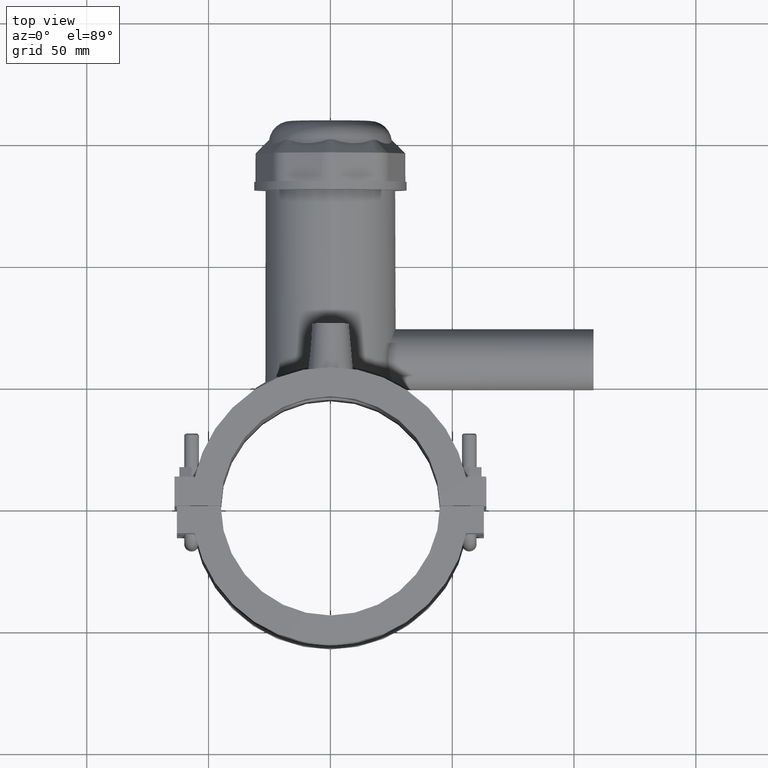
[diagram: clean part render]
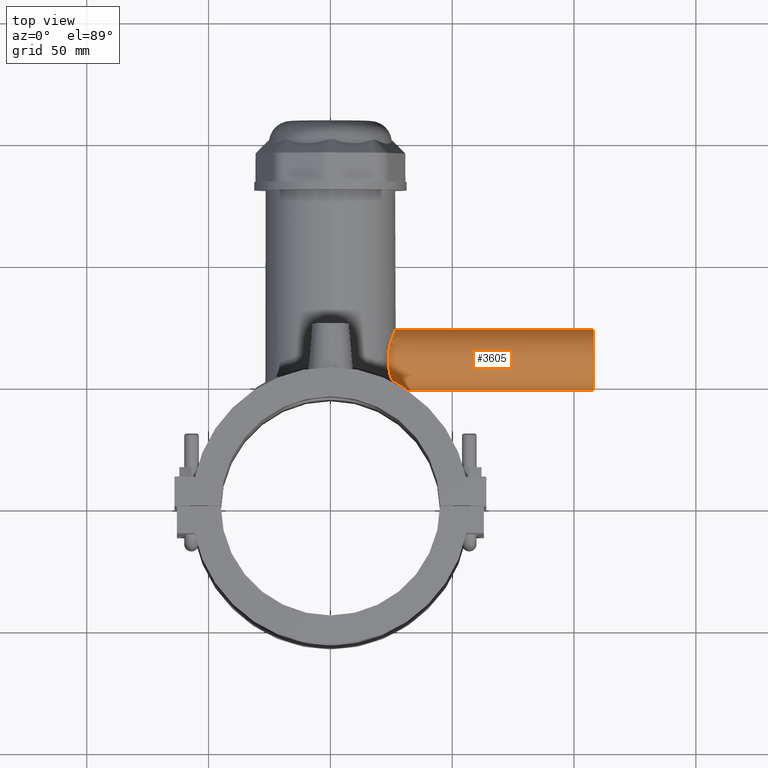
[diagram: same view with one face highlighted and labeled with its STEP entity id]
A machine part, top view. The second image highlights one B-rep face of the part: STEP entity #3605.
In plain terms, the highlighted cylindrical surface (bore or boss wall) has radius 12.5 mm, axis along (1, 0, 0).
Its self-contained STEP definition (entity closure, byte-faithful):
#783=CIRCLE('',#3833,12.5);
#908=FACE_BOUND('',#1187,.T.);
#960=FACE_OUTER_BOUND('',#1186,.T.);
#1186=EDGE_LOOP('',(#2462,#2463,#2464,#2465,#2466,#2467));
#1187=EDGE_LOOP('',(#2468));
#1460=B_SPLINE_CURVE_WITH_KNOTS('',3,(#5221,#5222,#5223,#5224,#5225,#5226,
#5227,#5228),.UNSPECIFIED.,.F.,.F.,(4,2,2,4),(2.8335730974998,3.075301165948,
3.51558167654324,3.62995735696861),.UNSPECIFIED.);
#1461=B_SPLINE_CURVE_WITH_KNOTS('',3,(#5230,#5231,#5232,#5233,#5234,#5235,
#5236,#5237,#5238,#5239,#5240,#5241,#5242,#5243,#5244,#5245,#5246,#5247,
#5248,#5249,#5250,#5251,#5252,#5253,#5254),.UNSPECIFIED.,.F.,.F.,(4,3,3,
3,3,3,3,3,4),(-0.281778788486912,-0.280168498724319,-0.278463444809663,
-0.275713408501899,-0.267417335682357,-0.166922444262522,-0.141924300416546,
-0.00974179914103905,0.),.UNSPECIFIED.);
#1462=B_SPLINE_CURVE_WITH_KNOTS('',3,(#5256,#5257,#5258,#5259,#5260,#5261,
#5262,#5263,#5264,#5265,#5266,#5267,#5268,#5269),.UNSPECIFIED.,.F.,.F.,
(4,2,2,2,2,2,4),(-0.542855285100639,-0.465706140484891,-0.355963267477839,
-0.309365403203592,-0.287933922326952,-0.283739571340908,-0.281778788486912),
 .UNSPECIFIED.);
#1463=B_SPLINE_CURVE_WITH_KNOTS('',3,(#5271,#5272,#5273,#5274,#5275,#5276,
#5277,#5278),.UNSPECIFIED.,.F.,.F.,(4,2,2,4),(1.20646585136034,1.32084153178572,
1.76112204238096,2.00285010728579),.UNSPECIFIED.);
#1464=B_SPLINE_CURVE_WITH_KNOTS('',3,(#5280,#5281,#5282,#5283,#5284,#5285,
#5286,#5287),.UNSPECIFIED.,.F.,.F.,(4,2,2,4),(0.,0.23978623097275,0.4795724619455,
0.945568926322873),.UNSPECIFIED.);
#1465=B_SPLINE_CURVE_WITH_KNOTS('',3,(#5288,#5289,#5290,#5291,#5292,#5293,
#5294,#5295,#5296,#5297,#5298,#5299,#5300,#5301,#5302,#5303,#5304,#5305,
#5306,#5307,#5308,#5309,#5310,#5311,#5312,#5313,#5314,#5315,#5316,#5317,
#5318,#5319),.UNSPECIFIED.,.F.,.F.,(4,2,2,2,2,2,2,2,2,2,2,2,2,2,2,4),(2.8871768996884,
3.35317336406577,3.59295959503852,3.83274582601127,4.07253205698402,4.31231828795677,
4.79189074990227,5.27050474445959,5.50981174173825,5.74911873901691,5.98842573629557,
6.22773273357423,6.70634672813155,7.18591919007705,7.4257054210498,7.66549165202255),
 .UNSPECIFIED.);
#1573=VERTEX_POINT('',#5219);
#1574=VERTEX_POINT('',#5220);
#1575=VERTEX_POINT('',#5229);
#1576=VERTEX_POINT('',#5255);
#1577=VERTEX_POINT('',#5270);
#1578=VERTEX_POINT('',#5279);
#1579=VERTEX_POINT('',#5320);
#1926=EDGE_CURVE('',#1573,#1574,#1460,.T.);
#1927=EDGE_CURVE('',#1575,#1573,#1461,.T.);
#1928=EDGE_CURVE('',#1576,#1575,#1462,.T.);
#1929=EDGE_CURVE('',#1577,#1576,#1463,.T.);
#1930=EDGE_CURVE('',#1578,#1577,#1464,.T.);
#1931=EDGE_CURVE('',#1574,#1578,#1465,.T.);
#1932=EDGE_CURVE('',#1579,#1579,#783,.T.);
#2462=ORIENTED_EDGE('',*,*,#1926,.F.);
#2463=ORIENTED_EDGE('',*,*,#1927,.F.);
#2464=ORIENTED_EDGE('',*,*,#1928,.F.);
#2465=ORIENTED_EDGE('',*,*,#1929,.F.);
#2466=ORIENTED_EDGE('',*,*,#1930,.F.);
#2467=ORIENTED_EDGE('',*,*,#1931,.F.);
#2468=ORIENTED_EDGE('',*,*,#1932,.F.);
#3549=CYLINDRICAL_SURFACE('',#3832,12.5);
#3605=ADVANCED_FACE('',(#960,#908),#3549,.T.);
#3832=AXIS2_PLACEMENT_3D('',#5218,#4164,#4165);
#3833=AXIS2_PLACEMENT_3D('',#5321,#4166,#4167);
#4164=DIRECTION('center_axis',(1.,0.,0.));
#4165=DIRECTION('ref_axis',(0.,1.,0.));
#4166=DIRECTION('center_axis',(1.,0.,0.));
#4167=DIRECTION('ref_axis',(0.,0.,-1.));
#5218=CARTESIAN_POINT('Origin',(54.,61.,0.));
#5219=CARTESIAN_POINT('',(30.8062860050717,49.1801358942178,4.06703977369833));
#5220=CARTESIAN_POINT('',(25.2413386704774,52.2550269938246,8.93171020139377));
#5221=CARTESIAN_POINT('Ctrl Pts',(30.8062860050715,49.1801358942179,4.06703977369822));
#5222=CARTESIAN_POINT('Ctrl Pts',(30.4127512037081,49.4266448845514,4.78345833086091));
#5223=CARTESIAN_POINT('Ctrl Pts',(29.9274635719254,49.7233122681519,5.42928357273707));
#5224=CARTESIAN_POINT('Ctrl Pts',(28.4931459425311,50.5668625062996,6.97826078340267));
#5225=CARTESIAN_POINT('Ctrl Pts',(27.402265987866,51.1726862768609,7.77721700931847));
#5226=CARTESIAN_POINT('Ctrl Pts',(25.8878946177037,51.9389297207693,8.6140437186314));
#5227=CARTESIAN_POINT('Ctrl Pts',(25.5680120279143,52.0972302549158,8.77721255297899));
#5228=CARTESIAN_POINT('Ctrl Pts',(25.2413386704507,52.2550269938081,8.93171020135421));
#5229=CARTESIAN_POINT('',(31.4634893794251,48.500020769456,-0.0227867498495124));
#5230=CARTESIAN_POINT('Ctrl Pts',(31.4634076069789,48.4997091859858,-0.0227948101558931));
#5231=CARTESIAN_POINT('Ctrl Pts',(31.4634201441957,48.4996911043606,-0.012629681378798));
#5232=CARTESIAN_POINT('Ctrl Pts',(31.4634249774448,48.4996855153327,-0.00246449456934948));
#5233=CARTESIAN_POINT('Ctrl Pts',(31.4634221082652,48.4996924167185,0.00770065422653663));
#5234=CARTESIAN_POINT('Ctrl Pts',(31.4634190702369,48.4996997242449,0.0184640131884477));
#5235=CARTESIAN_POINT('Ctrl Pts',(31.4634073965289,48.4997210356156,0.0292274026756375));
#5236=CARTESIAN_POINT('Ctrl Pts',(31.463387086864,48.4997563478453,0.0399906913555561));
#5237=CARTESIAN_POINT('Ctrl Pts',(31.4633543299435,48.4998133020055,0.0573505146469506));
#5238=CARTESIAN_POINT('Ctrl Pts',(31.4632991078644,48.4999066787408,0.0747103545875657));
#5239=CARTESIAN_POINT('Ctrl Pts',(31.4632214076892,48.5000364631734,0.0920696599181408));
#5240=CARTESIAN_POINT('Ctrl Pts',(31.4629870084888,48.5004279856781,0.144437718009762));
#5241=CARTESIAN_POINT('Ctrl Pts',(31.4625480909432,48.5011509303654,0.196807199941022));
#5242=CARTESIAN_POINT('Ctrl Pts',(31.4619034971594,48.5022047272064,0.249162936970466));
#5243=CARTESIAN_POINT('Ctrl Pts',(31.4540951782446,48.5149699477417,0.883376765902411));
#5244=CARTESIAN_POINT('Ctrl Pts',(31.4178815490393,48.5755478607373,1.47692853793576));
#5245=CARTESIAN_POINT('Ctrl Pts',(31.3526076465897,48.6637335440836,2.01473355948931));
#5246=CARTESIAN_POINT('Ctrl Pts',(31.3363707376308,48.6856697675702,2.14851277055108));
#5247=CARTESIAN_POINT('Ctrl Pts',(31.3182861693804,48.7092690641207,2.2788559476762));
#5248=CARTESIAN_POINT('Ctrl Pts',(31.2983096499739,48.7341352607962,2.40556181986223));
#5249=CARTESIAN_POINT('Ctrl Pts',(31.1926799552975,48.8656200659892,3.07554352790573));
#5250=CARTESIAN_POINT('Ctrl Pts',(31.0388321821759,49.0256832104116,3.60684764580445));
#5251=CARTESIAN_POINT('Ctrl Pts',(30.8499498941298,49.152623564453,3.98416841800225));
#5252=CARTESIAN_POINT('Ctrl Pts',(30.8360293426673,49.1619790193735,4.01197681275212));
#5253=CARTESIAN_POINT('Ctrl Pts',(30.8215915518938,49.171375530721,4.03959128339428));
#5254=CARTESIAN_POINT('Ctrl Pts',(30.8066297873845,49.1807479733073,4.06684648115406));
#5255=CARTESIAN_POINT('',(30.8062859995515,49.1801359023639,-4.06703981261122));
#5256=CARTESIAN_POINT('Ctrl Pts',(30.8062860050717,49.1801358942177,-4.06703977369781));
#5257=CARTESIAN_POINT('Ctrl Pts',(30.927670006016,49.1041013290109,-3.84606376212826));
#5258=CARTESIAN_POINT('Ctrl Pts',(31.0382907484818,49.0119352577934,-3.55913442271458));
#5259=CARTESIAN_POINT('Ctrl Pts',(31.2649960199497,48.7867203589022,-2.71129903387711));
#5260=CARTESIAN_POINT('Ctrl Pts',(31.3574914643694,48.6600540069396,-2.11004682262351));
#5261=CARTESIAN_POINT('Ctrl Pts',(31.4334041417753,48.5480020500026,-1.13299092411028));
#5262=CARTESIAN_POINT('Ctrl Pts',(31.4480509200006,48.5247209420449,-0.838992582660414));
#5263=CARTESIAN_POINT('Ctrl Pts',(31.4597928810253,48.5059946972116,-0.410034187960287));
#5264=CARTESIAN_POINT('Ctrl Pts',(31.4620869468401,48.5022857813546,-0.274680713899316));
#5265=CARTESIAN_POINT('Ctrl Pts',(31.4632041110004,48.5004817508045,-0.112893138722136));
#5266=CARTESIAN_POINT('Ctrl Pts',(31.4633347728734,48.5002706190462,-0.086410375507048));
#5267=CARTESIAN_POINT('Ctrl Pts',(31.4634500708005,48.5000842998945,-0.047547479229087));
#5268=CARTESIAN_POINT('Ctrl Pts',(31.4634754154102,48.5000433381422,-0.0351671073452124));
#5269=CARTESIAN_POINT('Ctrl Pts',(31.4634893794251,48.500020769456,-0.0227867498495124));
#5270=CARTESIAN_POINT('',(25.2413386704774,52.2550269938246,-8.93171020139377));
#5271=CARTESIAN_POINT('Ctrl Pts',(25.2413386704507,52.2550269938081,-8.93171020135421));
#5272=CARTESIAN_POINT('Ctrl Pts',(25.5680120279142,52.0972302549158,-8.77721255297899));
#5273=CARTESIAN_POINT('Ctrl Pts',(25.8878946177037,51.9389297207693,-8.61404371863141));
#5274=CARTESIAN_POINT('Ctrl Pts',(27.402265987866,51.1726862768609,-7.77721700931848));
#5275=CARTESIAN_POINT('Ctrl Pts',(28.4931459425311,50.5668625062996,-6.97826078340267));
#5276=CARTESIAN_POINT('Ctrl Pts',(29.9274635644734,49.7233122725346,-5.42928358078477));
#5277=CARTESIAN_POINT('Ctrl Pts',(30.4127511895546,49.4266448932242,-4.7834583498587));
#5278=CARTESIAN_POINT('Ctrl Pts',(30.8062859877629,49.1801359050599,-4.06703980520797));
#5279=CARTESIAN_POINT('',(23.6780621039814,61.,-12.5));
#5280=CARTESIAN_POINT('Ctrl Pts',(23.6780621039814,61.,-12.5));
#5281=CARTESIAN_POINT('Ctrl Pts',(23.6780621039814,60.2007125634242,-12.5));
#5282=CARTESIAN_POINT('Ctrl Pts',(23.7197057853433,59.3790608929421,-12.4221218699072));
#5283=CARTESIAN_POINT('Ctrl Pts',(23.885897813585,57.7535995854817,-12.0994809729272));
#5284=CARTESIAN_POINT('Ctrl Pts',(24.0101974233068,56.9497401731701,-11.8548409108701));
#5285=CARTESIAN_POINT('Ctrl Pts',(24.4606302428727,54.6906209075011,-10.9112227517647));
#5286=CARTESIAN_POINT('Ctrl Pts',(24.86661222375,53.3366309215302,-9.99070080203466));
#5287=CARTESIAN_POINT('Ctrl Pts',(25.2413386704889,52.2550269938485,-8.93171020139378));
#5288=CARTESIAN_POINT('Ctrl Pts',(25.2413386704889,52.2550269938485,8.93171020139376));
#5289=CARTESIAN_POINT('Ctrl Pts',(24.86661222375,53.3366309215302,9.99070080203465));
#5290=CARTESIAN_POINT('Ctrl Pts',(24.4606302428727,54.6906209075011,10.9112227517647));
#5291=CARTESIAN_POINT('Ctrl Pts',(24.0101974233068,56.9497401731701,11.8548409108701));
#5292=CARTESIAN_POINT('Ctrl Pts',(23.885897813585,57.7535995854817,12.0994809729272));
#5293=CARTESIAN_POINT('Ctrl Pts',(23.7197057853433,59.3790608929421,12.4221218699072));
#5294=CARTESIAN_POINT('Ctrl Pts',(23.6780621039814,60.2007125634242,12.5));
#5295=CARTESIAN_POINT('Ctrl Pts',(23.6780621039814,61.7992874365758,12.5));
#5296=CARTESIAN_POINT('Ctrl Pts',(23.7197057853433,62.6209391070579,12.4221218699072));
#5297=CARTESIAN_POINT('Ctrl Pts',(23.885897813585,64.2464004145183,12.0994809729272));
#5298=CARTESIAN_POINT('Ctrl Pts',(24.0101974233068,65.0502598268298,11.8548409108701));
#5299=CARTESIAN_POINT('Ctrl Pts',(24.4692944888274,67.3528341075608,10.8930718989348));
#5300=CARTESIAN_POINT('Ctrl Pts',(24.8902594337894,68.7415252216274,9.93614430803632));
#5301=CARTESIAN_POINT('Ctrl Pts',(25.6569953274399,70.9339512392191,7.74371829044461));
#5302=CARTESIAN_POINT('Ctrl Pts',(26.0569459295314,71.8925083616202,6.35425381528682));
#5303=CARTESIAN_POINT('Ctrl Pts',(26.4785621311015,72.8552462112391,4.0492542187518));
#5304=CARTESIAN_POINT('Ctrl Pts',(26.5902163221583,73.0999782519526,3.24457956005673));
#5305=CARTESIAN_POINT('Ctrl Pts',(26.7384806625623,73.4224078898599,1.61881204579229));
#5306=CARTESIAN_POINT('Ctrl Pts',(26.775,73.5,0.797689990928868));
#5307=CARTESIAN_POINT('Ctrl Pts',(26.775,73.5,-0.797689990928862));
#5308=CARTESIAN_POINT('Ctrl Pts',(26.7384806625623,73.4224078898599,-1.61881204579228));
#5309=CARTESIAN_POINT('Ctrl Pts',(26.5902163221583,73.0999782519526,-3.24457956005673));
#5310=CARTESIAN_POINT('Ctrl Pts',(26.4785621311015,72.8552462112391,-4.04925421875179));
#5311=CARTESIAN_POINT('Ctrl Pts',(26.0569459295314,71.8925083616202,-6.35425381528681));
#5312=CARTESIAN_POINT('Ctrl Pts',(25.6569953274399,70.9339512392191,-7.74371829044461));
#5313=CARTESIAN_POINT('Ctrl Pts',(24.8902594337894,68.7415252216274,-9.93614430803632));
#5314=CARTESIAN_POINT('Ctrl Pts',(24.4692944888273,67.3528341075608,-10.8930718989348));
#5315=CARTESIAN_POINT('Ctrl Pts',(24.0101974233068,65.0502598268298,-11.8548409108701));
#5316=CARTESIAN_POINT('Ctrl Pts',(23.885897813585,64.2464004145183,-12.0994809729272));
#5317=CARTESIAN_POINT('Ctrl Pts',(23.7197057853433,62.6209391070579,-12.4221218699072));
#5318=CARTESIAN_POINT('Ctrl Pts',(23.6780621039814,61.7992874365758,-12.5));
#5319=CARTESIAN_POINT('Ctrl Pts',(23.6780621039814,61.,-12.5));
#5320=CARTESIAN_POINT('',(108.,73.5,0.));
#5321=CARTESIAN_POINT('Origin',(108.,61.,0.));